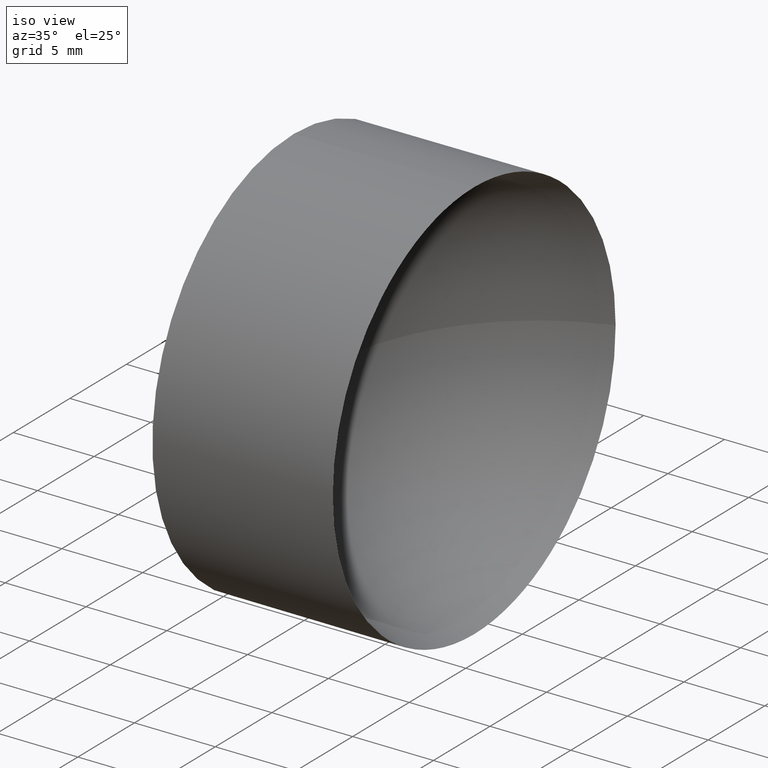
[diagram: clean part render]
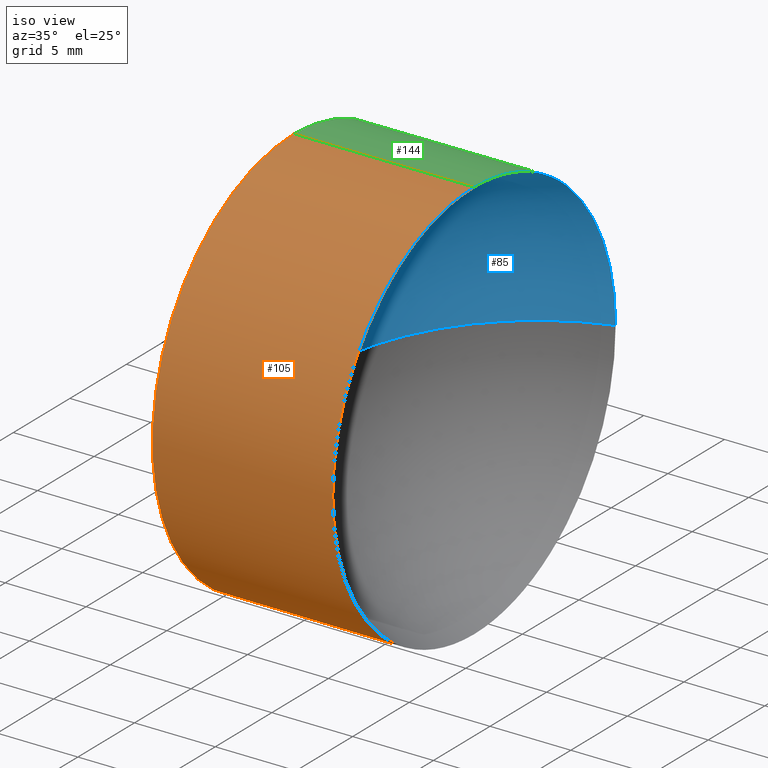
[diagram: same view with three faces highlighted in distinct colors, each labeled with its STEP entity id]
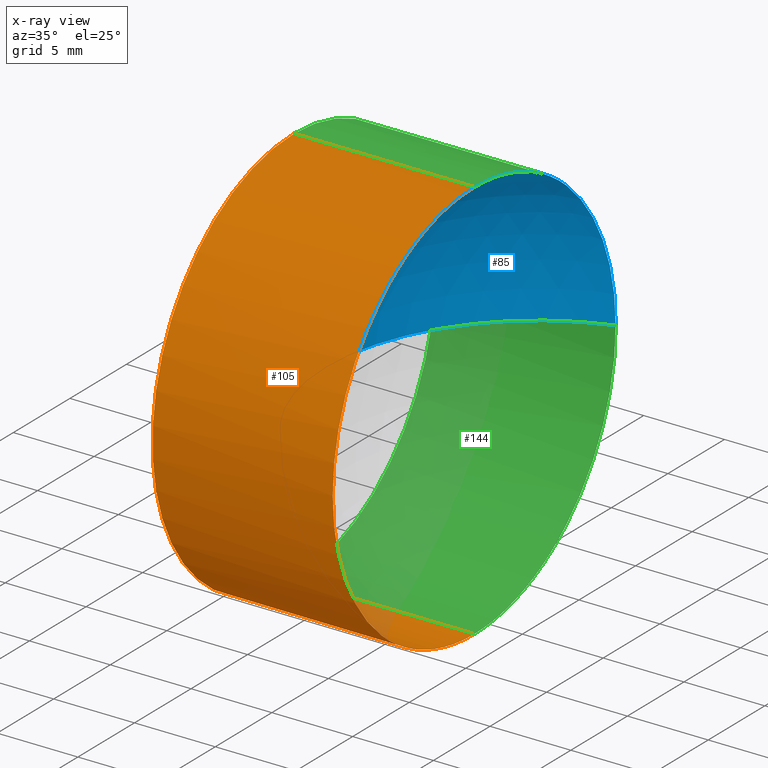
[diagram: x-ray of the same camera — body ghosted, the three highlighted faces saturated]
A machine part, iso view with three faces highlighted in distinct colors.
The next image is the same camera in x-ray (body ghosted, the three faces saturated) — at least one of them is partly hidden behind the body in this view.
Their STEP definitions:

[orange] entity #105 — the highlighted cylindrical surface (partial cylindrical patch) has radius 12.5 mm, axis along (-1, -0, -0).
#12 = DIRECTION ( 'NONE',  ( 0.0000000000000000000, 0.0000000000000000000, 1.000000000000000000 ) ) ;
#19 = FACE_OUTER_BOUND ( 'NONE', #63, .T. ) ;
#28 = VERTEX_POINT ( 'NONE', #65 ) ;
#29 = CARTESIAN_POINT ( 'NONE',  ( 57.53233705252611700, 32.61076812922678400, 12.49999999999999600 ) ) ;
#31 = CARTESIAN_POINT ( 'NONE',  ( 56.10091507999716500, 32.61076812922678400, 12.49999999999999600 ) ) ;
#42 = DIRECTION ( 'NONE',  ( -1.000000000000000000, -0.0000000000000000000, -0.0000000000000000000 ) ) ;
#47 = CARTESIAN_POINT ( 'NONE',  ( 56.10091507999716500, 32.61076812922678400, -12.49999999999999600 ) ) ;
#49 = EDGE_CURVE ( 'NONE', #61, #52, #97, .T. ) ;
#52 = VERTEX_POINT ( 'NONE', #62 ) ;
#56 = EDGE_CURVE ( 'NONE', #28, #127, #136, .T. ) ;
#60 = EDGE_CURVE ( 'NONE', #52, #84, #92, .T. ) ;
#61 = VERTEX_POINT ( 'NONE', #142 ) ;
#62 = CARTESIAN_POINT ( 'NONE',  ( 57.53233705252611700, 32.61076812922678400, -12.49999999999999600 ) ) ;
#63 = EDGE_LOOP ( 'NONE', ( #166, #96, #74, #115, #80 ) ) ;
#65 = CARTESIAN_POINT ( 'NONE',  ( 68.69233705252611300, 20.11076812922678800, 0.0000000000000000000 ) ) ;
#66 = EDGE_CURVE ( 'NONE', #61, #28, #129, .T. ) ;
#70 = DIRECTION ( 'NONE',  ( 0.0000000000000000000, 0.0000000000000000000, 1.000000000000000000 ) ) ;
#72 = CARTESIAN_POINT ( 'NONE',  ( 68.69233705252611300, 32.61076812922678400, 0.0000000000000000000 ) ) ;
#74 = ORIENTED_EDGE ( 'NONE', *, *, #56, .T. ) ;
#76 = DIRECTION ( 'NONE',  ( -1.000000000000000000, -0.0000000000000000000, -0.0000000000000000000 ) ) ;
#80 = ORIENTED_EDGE ( 'NONE', *, *, #60, .F. ) ;
#84 = VERTEX_POINT ( 'NONE', #29 ) ;
#88 = AXIS2_PLACEMENT_3D ( 'NONE', #123, #162, #160 ) ;
#92 = CIRCLE ( 'NONE', #140, 12.49999999999999600 ) ;
#96 = ORIENTED_EDGE ( 'NONE', *, *, #66, .T. ) ;
#97 = LINE ( 'NONE', #47, #117 ) ;
#99 = AXIS2_PLACEMENT_3D ( 'NONE', #149, #107, #70 ) ;
#105 = ADVANCED_FACE ( 'NONE', ( #19 ), #186, .T. ) ;
#107 = DIRECTION ( 'NONE',  ( -1.000000000000000000, -0.0000000000000000000, -0.0000000000000000000 ) ) ;
#115 = ORIENTED_EDGE ( 'NONE', *, *, #185, .T. ) ;
#117 = VECTOR ( 'NONE', #143, 1000.000000000000000 ) ;
#119 = LINE ( 'NONE', #31, #179 ) ;
#123 = CARTESIAN_POINT ( 'NONE',  ( 56.10091507999716500, 32.61076812922678400, 0.0000000000000000000 ) ) ;
#127 = VERTEX_POINT ( 'NONE', #178 ) ;
#129 = CIRCLE ( 'NONE', #99, 12.49999999999999600 ) ;
#136 = CIRCLE ( 'NONE', #156, 12.49999999999999600 ) ;
#140 = AXIS2_PLACEMENT_3D ( 'NONE', #163, #76, #180 ) ;
#142 = CARTESIAN_POINT ( 'NONE',  ( 68.69233705252611300, 32.61076812922678400, -12.49999999999999600 ) ) ;
#143 = DIRECTION ( 'NONE',  ( -1.000000000000000000, -0.0000000000000000000, -0.0000000000000000000 ) ) ;
#149 = CARTESIAN_POINT ( 'NONE',  ( 68.69233705252611300, 32.61076812922678400, 0.0000000000000000000 ) ) ;
#156 = AXIS2_PLACEMENT_3D ( 'NONE', #72, #42, #12 ) ;
#160 = DIRECTION ( 'NONE',  ( 0.0000000000000000000, 0.0000000000000000000, 1.000000000000000000 ) ) ;
#161 = DIRECTION ( 'NONE',  ( -1.000000000000000000, -0.0000000000000000000, -0.0000000000000000000 ) ) ;
#162 = DIRECTION ( 'NONE',  ( -1.000000000000000000, -0.0000000000000000000, -0.0000000000000000000 ) ) ;
#163 = CARTESIAN_POINT ( 'NONE',  ( 57.53233705252611700, 32.61076812922678400, 0.0000000000000000000 ) ) ;
#166 = ORIENTED_EDGE ( 'NONE', *, *, #49, .F. ) ;
#178 = CARTESIAN_POINT ( 'NONE',  ( 68.69233705252611300, 32.61076812922678400, 12.49999999999999600 ) ) ;
#179 = VECTOR ( 'NONE', #161, 1000.000000000000000 ) ;
#180 = DIRECTION ( 'NONE',  ( 0.0000000000000000000, 0.0000000000000000000, 1.000000000000000000 ) ) ;
#185 = EDGE_CURVE ( 'NONE', #127, #84, #119, .T. ) ;
#186 = CYLINDRICAL_SURFACE ( 'NONE', #88, 12.49999999999999600 ) ;

[blue] entity #85 — the highlighted spherical surface has radius 13.1089 mm.
#1 = AXIS2_PLACEMENT_3D ( 'NONE', #9, #139, #171 ) ;
#3 = VERTEX_POINT ( 'NONE', #167 ) ;
#9 = CARTESIAN_POINT ( 'NONE',  ( 72.64126718353050200, 32.61076812922678400, 0.0000000000000000000 ) ) ;
#10 = ORIENTED_EDGE ( 'NONE', *, *, #56, .F. ) ;
#12 = DIRECTION ( 'NONE',  ( 0.0000000000000000000, 0.0000000000000000000, 1.000000000000000000 ) ) ;
#18 = DIRECTION ( 'NONE',  ( 0.0000000000000000000, -1.000000000000000000, 0.0000000000000000000 ) ) ;
#23 = EDGE_CURVE ( 'NONE', #28, #106, #100, .T. ) ;
#28 = VERTEX_POINT ( 'NONE', #65 ) ;
#34 = CIRCLE ( 'NONE', #79, 13.10893013100437400 ) ;
#35 = AXIS2_PLACEMENT_3D ( 'NONE', #133, #90, #18 ) ;
#37 = EDGE_LOOP ( 'NONE', ( #145, #124, #10, #141 ) ) ;
#41 = DIRECTION ( 'NONE',  ( 0.0000000000000000000, -1.000000000000000000, -1.224646799147353200E-016 ) ) ;
#42 = DIRECTION ( 'NONE',  ( -1.000000000000000000, -0.0000000000000000000, -0.0000000000000000000 ) ) ;
#45 = CIRCLE ( 'NONE', #158, 12.49999999999999600 ) ;
#56 = EDGE_CURVE ( 'NONE', #28, #127, #136, .T. ) ;
#64 = EDGE_CURVE ( 'NONE', #3, #106, #34, .T. ) ;
#65 = CARTESIAN_POINT ( 'NONE',  ( 68.69233705252611300, 20.11076812922678800, 0.0000000000000000000 ) ) ;
#67 = FACE_OUTER_BOUND ( 'NONE', #37, .T. ) ;
#71 = DIRECTION ( 'NONE',  ( -1.000000000000000000, -0.0000000000000000000, -0.0000000000000000000 ) ) ;
#72 = CARTESIAN_POINT ( 'NONE',  ( 68.69233705252611300, 32.61076812922678400, 0.0000000000000000000 ) ) ;
#79 = AXIS2_PLACEMENT_3D ( 'NONE', #148, #164, #41 ) ;
#85 = ADVANCED_FACE ( 'NONE', ( #67 ), #168, .F. ) ;
#90 = DIRECTION ( 'NONE',  ( 0.0000000000000000000, 0.0000000000000000000, 1.000000000000000000 ) ) ;
#100 = CIRCLE ( 'NONE', #1, 13.10893013100437800 ) ;
#106 = VERTEX_POINT ( 'NONE', #122 ) ;
#108 = CARTESIAN_POINT ( 'NONE',  ( 68.69233705252611300, 32.61076812922678400, 0.0000000000000000000 ) ) ;
#122 = CARTESIAN_POINT ( 'NONE',  ( 59.53233705252612400, 32.61076812922678400, 0.0000000000000000000 ) ) ;
#124 = ORIENTED_EDGE ( 'NONE', *, *, #153, .F. ) ;
#127 = VERTEX_POINT ( 'NONE', #178 ) ;
#133 = CARTESIAN_POINT ( 'NONE',  ( 72.64126718353050200, 32.61076812922678400, 0.0000000000000000000 ) ) ;
#136 = CIRCLE ( 'NONE', #156, 12.49999999999999600 ) ;
#139 = DIRECTION ( 'NONE',  ( 0.0000000000000000000, 0.0000000000000000000, -1.000000000000000000 ) ) ;
#141 = ORIENTED_EDGE ( 'NONE', *, *, #23, .T. ) ;
#145 = ORIENTED_EDGE ( 'NONE', *, *, #64, .F. ) ;
#148 = CARTESIAN_POINT ( 'NONE',  ( 72.64126718353050200, 32.61076812922678400, 0.0000000000000000000 ) ) ;
#153 = EDGE_CURVE ( 'NONE', #127, #3, #45, .T. ) ;
#156 = AXIS2_PLACEMENT_3D ( 'NONE', #72, #42, #12 ) ;
#158 = AXIS2_PLACEMENT_3D ( 'NONE', #108, #71, #181 ) ;
#164 = DIRECTION ( 'NONE',  ( 0.0000000000000000000, -1.224646799147353200E-016, 1.000000000000000000 ) ) ;
#167 = CARTESIAN_POINT ( 'NONE',  ( 68.69233705252611300, 45.11076812922679100, 1.530808498934191500E-015 ) ) ;
#168 = SPHERICAL_SURFACE ( 'NONE', #35, 13.10893013100437400 ) ;
#171 = DIRECTION ( 'NONE',  ( -1.000000000000000000, 0.0000000000000000000, 0.0000000000000000000 ) ) ;
#178 = CARTESIAN_POINT ( 'NONE',  ( 68.69233705252611300, 32.61076812922678400, 12.49999999999999600 ) ) ;
#181 = DIRECTION ( 'NONE',  ( 0.0000000000000000000, 0.0000000000000000000, 1.000000000000000000 ) ) ;

[green] entity #144 — the highlighted cylindrical surface (partial cylindrical patch) has radius 12.5 mm, axis along (-1, -0, -0).
#3 = VERTEX_POINT ( 'NONE', #167 ) ;
#8 = FACE_OUTER_BOUND ( 'NONE', #126, .T. ) ;
#16 = ORIENTED_EDGE ( 'NONE', *, *, #44, .T. ) ;
#25 = ORIENTED_EDGE ( 'NONE', *, *, #49, .T. ) ;
#26 = ORIENTED_EDGE ( 'NONE', *, *, #153, .T. ) ;
#27 = CIRCLE ( 'NONE', #87, 12.49999999999999600 ) ;
#29 = CARTESIAN_POINT ( 'NONE',  ( 57.53233705252611700, 32.61076812922678400, 12.49999999999999600 ) ) ;
#31 = CARTESIAN_POINT ( 'NONE',  ( 56.10091507999716500, 32.61076812922678400, 12.49999999999999600 ) ) ;
#38 = DIRECTION ( 'NONE',  ( -1.000000000000000000, -0.0000000000000000000, -0.0000000000000000000 ) ) ;
#44 = EDGE_CURVE ( 'NONE', #3, #61, #27, .T. ) ;
#45 = CIRCLE ( 'NONE', #158, 12.49999999999999600 ) ;
#46 = EDGE_CURVE ( 'NONE', #84, #52, #169, .T. ) ;
#47 = CARTESIAN_POINT ( 'NONE',  ( 56.10091507999716500, 32.61076812922678400, -12.49999999999999600 ) ) ;
#49 = EDGE_CURVE ( 'NONE', #61, #52, #97, .T. ) ;
#51 = CARTESIAN_POINT ( 'NONE',  ( 56.10091507999716500, 32.61076812922678400, 0.0000000000000000000 ) ) ;
#52 = VERTEX_POINT ( 'NONE', #62 ) ;
#54 = CYLINDRICAL_SURFACE ( 'NONE', #113, 12.49999999999999600 ) ;
#58 = ORIENTED_EDGE ( 'NONE', *, *, #185, .F. ) ;
#61 = VERTEX_POINT ( 'NONE', #142 ) ;
#62 = CARTESIAN_POINT ( 'NONE',  ( 57.53233705252611700, 32.61076812922678400, -12.49999999999999600 ) ) ;
#68 = ORIENTED_EDGE ( 'NONE', *, *, #46, .F. ) ;
#69 = CARTESIAN_POINT ( 'NONE',  ( 57.53233705252611700, 32.61076812922678400, 0.0000000000000000000 ) ) ;
#71 = DIRECTION ( 'NONE',  ( -1.000000000000000000, -0.0000000000000000000, -0.0000000000000000000 ) ) ;
#73 = DIRECTION ( 'NONE',  ( 0.0000000000000000000, 0.0000000000000000000, 1.000000000000000000 ) ) ;
#84 = VERTEX_POINT ( 'NONE', #29 ) ;
#86 = DIRECTION ( 'NONE',  ( 0.0000000000000000000, 0.0000000000000000000, 1.000000000000000000 ) ) ;
#87 = AXIS2_PLACEMENT_3D ( 'NONE', #131, #38, #157 ) ;
#91 = DIRECTION ( 'NONE',  ( -1.000000000000000000, -0.0000000000000000000, -0.0000000000000000000 ) ) ;
#97 = LINE ( 'NONE', #47, #117 ) ;
#103 = DIRECTION ( 'NONE',  ( -1.000000000000000000, -0.0000000000000000000, -0.0000000000000000000 ) ) ;
#108 = CARTESIAN_POINT ( 'NONE',  ( 68.69233705252611300, 32.61076812922678400, 0.0000000000000000000 ) ) ;
#113 = AXIS2_PLACEMENT_3D ( 'NONE', #51, #91, #73 ) ;
#117 = VECTOR ( 'NONE', #143, 1000.000000000000000 ) ;
#119 = LINE ( 'NONE', #31, #179 ) ;
#126 = EDGE_LOOP ( 'NONE', ( #16, #25, #68, #58, #26 ) ) ;
#127 = VERTEX_POINT ( 'NONE', #178 ) ;
#130 = AXIS2_PLACEMENT_3D ( 'NONE', #69, #103, #86 ) ;
#131 = CARTESIAN_POINT ( 'NONE',  ( 68.69233705252611300, 32.61076812922678400, 0.0000000000000000000 ) ) ;
#142 = CARTESIAN_POINT ( 'NONE',  ( 68.69233705252611300, 32.61076812922678400, -12.49999999999999600 ) ) ;
#143 = DIRECTION ( 'NONE',  ( -1.000000000000000000, -0.0000000000000000000, -0.0000000000000000000 ) ) ;
#144 = ADVANCED_FACE ( 'NONE', ( #8 ), #54, .T. ) ;
#153 = EDGE_CURVE ( 'NONE', #127, #3, #45, .T. ) ;
#157 = DIRECTION ( 'NONE',  ( 0.0000000000000000000, 0.0000000000000000000, 1.000000000000000000 ) ) ;
#158 = AXIS2_PLACEMENT_3D ( 'NONE', #108, #71, #181 ) ;
#161 = DIRECTION ( 'NONE',  ( -1.000000000000000000, -0.0000000000000000000, -0.0000000000000000000 ) ) ;
#167 = CARTESIAN_POINT ( 'NONE',  ( 68.69233705252611300, 45.11076812922679100, 1.530808498934191500E-015 ) ) ;
#169 = CIRCLE ( 'NONE', #130, 12.49999999999999600 ) ;
#178 = CARTESIAN_POINT ( 'NONE',  ( 68.69233705252611300, 32.61076812922678400, 12.49999999999999600 ) ) ;
#179 = VECTOR ( 'NONE', #161, 1000.000000000000000 ) ;
#181 = DIRECTION ( 'NONE',  ( 0.0000000000000000000, 0.0000000000000000000, 1.000000000000000000 ) ) ;
#185 = EDGE_CURVE ( 'NONE', #127, #84, #119, .T. ) ;